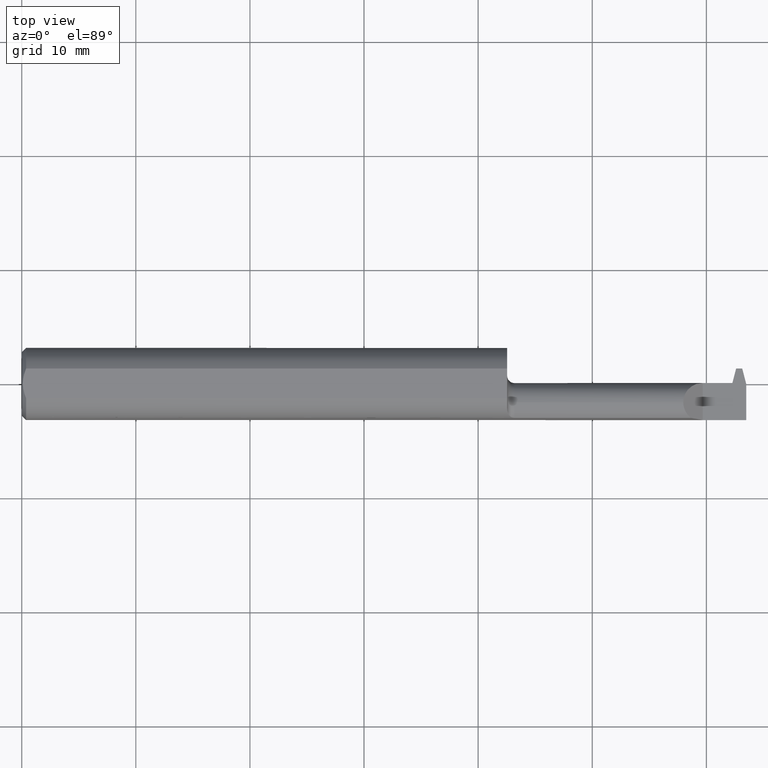
[diagram: clean part render]
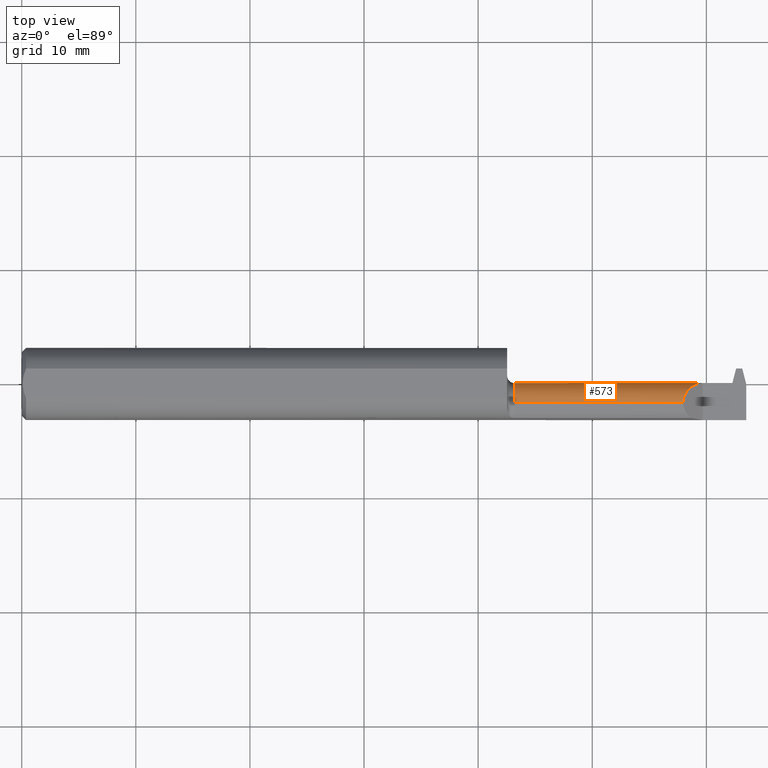
[diagram: same view with one face highlighted and labeled with its STEP entity id]
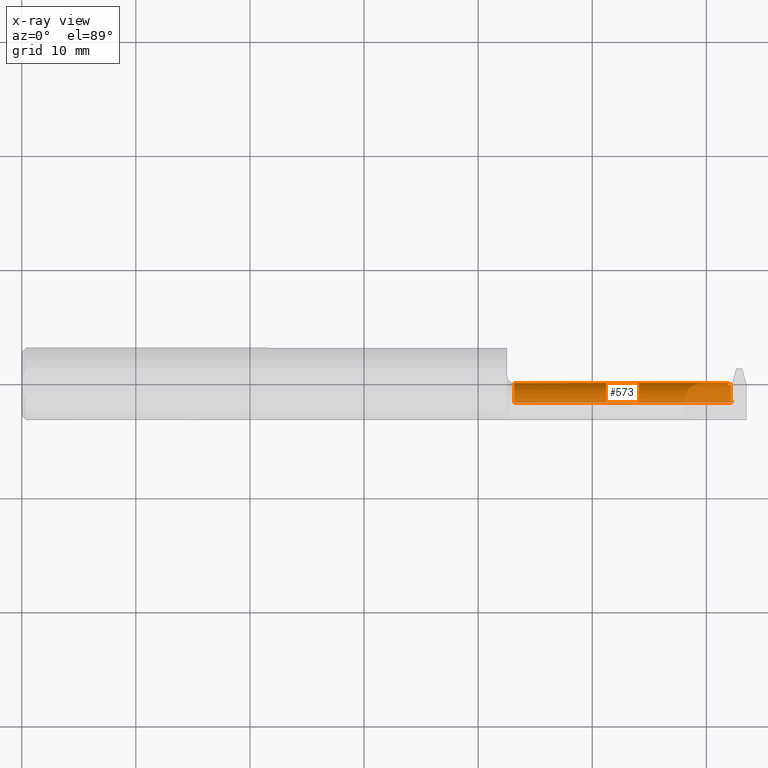
[diagram: x-ray of the same camera — body ghosted, the highlighted face saturated]
A machine part, top view. The second image highlights one B-rep face of the part: STEP entity #573.
The next image is the same camera in x-ray: the body ghosted, the highlighted face saturated — about 0% of this face is hidden behind the body in this view.
In plain terms, the highlighted cylindrical surface (edge-blend (fillet) strip) has radius 1.7145 mm, axis along (-1, -0, -0).
Its self-contained STEP definition (entity closure, byte-faithful):
#11 = EDGE_CURVE ( 'NONE', #83, #881, #441, .T. ) ;
#16 = EDGE_CURVE ( 'NONE', #265, #40, #671, .T. ) ;
#37 = CARTESIAN_POINT ( 'NONE',  ( 2.282599999999999962, -0.06435000000000003217, 0.06750000000000001832 ) ) ;
#40 = VERTEX_POINT ( 'NONE', #212 ) ;
#52 = DIRECTION ( 'NONE',  ( -1.000000000000000000, -0.000000000000000000, -0.000000000000000000 ) ) ;
#61 = CARTESIAN_POINT ( 'NONE',  ( 2.440098870360894789, 0.003149999999999981374, -0.009381965038885694066 ) ) ;
#69 = CARTESIAN_POINT ( 'NONE',  ( 1.675000000000000044, -0.05595768985601794199, -0.06697625796091639938 ) ) ;
#83 = VERTEX_POINT ( 'NONE', #835 ) ;
#88 =( BOUNDED_CURVE ( )  B_SPLINE_CURVE ( 3, ( #649, #266, #338, #37 ),
 .UNSPECIFIED., .F., .T. ) 
 B_SPLINE_CURVE_WITH_KNOTS ( ( 4, 4 ),
 ( 4.713870462408088713, 6.283185307179586232 ),
 .UNSPECIFIED. ) 
 CURVE ( )  GEOMETRIC_REPRESENTATION_ITEM ( )  RATIONAL_B_SPLINE_CURVE ( ( 1.000000000000000000, 0.8050869134249070136, 0.8050869134249070136, 1.000000000000000000 ) ) 
 REPRESENTATION_ITEM ( '' )  );
#99 = CARTESIAN_POINT ( 'NONE',  ( 1.675000000000000044, -0.06435000000000003217, 0.06750000000000001832 ) ) ;
#102 = ORIENTED_EDGE ( 'NONE', *, *, #430, .F. ) ;
#103 = CARTESIAN_POINT ( 'NONE',  ( 1.675000000000000044, 0.003149999999999980507, -3.367667473011537583E-17 ) ) ;
#122 = CARTESIAN_POINT ( 'NONE',  ( 2.436366871395940326, -0.002552249386265832611, -0.02715304806246835595 ) ) ;
#126 = VECTOR ( 'NONE', #934, 39.37007874015748143 ) ;
#128 =( BOUNDED_CURVE ( )  B_SPLINE_CURVE ( 3, ( #372, #525, #61, #830 ),
 .UNSPECIFIED., .F., .T. ) 
 B_SPLINE_CURVE_WITH_KNOTS ( ( 4, 4 ),
 ( 1.156804228221840036, 1.570796326794896780 ),
 .UNSPECIFIED. ) 
 CURVE ( )  GEOMETRIC_REPRESENTATION_ITEM ( )  RATIONAL_B_SPLINE_CURVE ( ( 1.000000000000000000, 0.9857684695413670983, 0.9857684695413670983, 1.000000000000000000 ) ) 
 REPRESENTATION_ITEM ( '' )  );
#129 = FACE_OUTER_BOUND ( 'NONE', #183, .T. ) ;
#137 = VERTEX_POINT ( 'NONE', #772 ) ;
#143 = AXIS2_PLACEMENT_3D ( 'NONE', #873, #196, #179 ) ;
#168 = VERTEX_POINT ( 'NONE', #852 ) ;
#179 = DIRECTION ( 'NONE',  ( 0.000000000000000000, 0.000000000000000000, 1.000000000000000000 ) ) ;
#183 = EDGE_LOOP ( 'NONE', ( #909, #389, #800, #102, #518, #599, #395, #360, #312, #306, #688, #686, #420 ) ) ;
#186 = EDGE_CURVE ( 'NONE', #40, #664, #826, .T. ) ;
#188 = AXIS2_PLACEMENT_3D ( 'NONE', #517, #749, #593 ) ;
#196 = DIRECTION ( 'NONE',  ( -1.000000000000000000, -0.000000000000000000, -0.000000000000000000 ) ) ;
#212 = CARTESIAN_POINT ( 'NONE',  ( 1.699999999999999956, -0.06435000000000003217, -0.06750000000000001832 ) ) ;
#221 = AXIS2_PLACEMENT_3D ( 'NONE', #255, #565, #340 ) ;
#222 = DIRECTION ( 'NONE',  ( 0.000000000000000000, 1.770642218115725568E-15, -1.000000000000000000 ) ) ;
#255 = CARTESIAN_POINT ( 'NONE',  ( 1.699999999999999956, -0.06435000000000003217, 0.000000000000000000 ) ) ;
#258 = CARTESIAN_POINT ( 'NONE',  ( 2.350000000000000089, -0.06435000000000003217, 0.000000000000000000 ) ) ;
#265 = VERTEX_POINT ( 'NONE', #631 ) ;
#266 = CARTESIAN_POINT ( 'NONE',  ( 2.310505889776659494, 0.003091416068753647349, 0.03959411022334007740 ) ) ;
#276 = DIRECTION ( 'NONE',  ( -1.000000000000000000, -0.000000000000000000, -0.000000000000000000 ) ) ;
#306 = ORIENTED_EDGE ( 'NONE', *, *, #971, .T. ) ;
#312 = ORIENTED_EDGE ( 'NONE', *, *, #401, .F. ) ;
#327 = VECTOR ( 'NONE', #52, 39.37007874015748143 ) ;
#338 = CARTESIAN_POINT ( 'NONE',  ( 2.282599999999999962, -0.02485584643600085783, 0.06749999999999999056 ) ) ;
#340 = DIRECTION ( 'NONE',  ( 0.000000000000000000, 0.000000000000000000, -1.000000000000000000 ) ) ;
#344 = AXIS2_PLACEMENT_3D ( 'NONE', #673, #513, #222 ) ;
#358 = CARTESIAN_POINT ( 'NONE',  ( 2.450000000000000178, -0.004283243744551730979, -0.03079342126085642811 ) ) ;
#360 = ORIENTED_EDGE ( 'NONE', *, *, #672, .F. ) ;
#372 = CARTESIAN_POINT ( 'NONE',  ( 2.436366871395940326, -0.002552249386265832611, -0.02715304806246835595 ) ) ;
#378 = VECTOR ( 'NONE', #819, 39.37007874015748143 ) ;
#389 = ORIENTED_EDGE ( 'NONE', *, *, #16, .T. ) ;
#395 = ORIENTED_EDGE ( 'NONE', *, *, #853, .T. ) ;
#401 = EDGE_CURVE ( 'NONE', #730, #871, #436, .T. ) ;
#420 = ORIENTED_EDGE ( 'NONE', *, *, #11, .T. ) ;
#430 = EDGE_CURVE ( 'NONE', #168, #664, #721, .T. ) ;
#435 = CARTESIAN_POINT ( 'NONE',  ( 2.446947195464070024, -0.004283243744551786490, -0.03079342126085652526 ) ) ;
#436 = LINE ( 'NONE', #741, #378 ) ;
#441 = LINE ( 'NONE', #69, #472 ) ;
#457 = EDGE_CURVE ( 'NONE', #137, #892, #778, .T. ) ;
#472 = VECTOR ( 'NONE', #511, 39.37007874015748143 ) ;
#486 = AXIS2_PLACEMENT_3D ( 'NONE', #258, #276, #803 ) ;
#491 = CIRCLE ( 'NONE', #976, 0.06750000000000001832 ) ;
#502 = LINE ( 'NONE', #103, #126 ) ;
#511 = DIRECTION ( 'NONE',  ( 1.000000000000000000, 0.000000000000000000, 0.000000000000000000 ) ) ;
#513 = DIRECTION ( 'NONE',  ( -1.000000000000000000, -0.000000000000000000, -0.000000000000000000 ) ) ;
#517 = CARTESIAN_POINT ( 'NONE',  ( 1.675000000000000044, -0.06435000000000003217, 0.000000000000000000 ) ) ;
#518 = ORIENTED_EDGE ( 'NONE', *, *, #839, .F. ) ;
#524 = CIRCLE ( 'NONE', #143, 0.06750000000000001832 ) ;
#525 = CARTESIAN_POINT ( 'NONE',  ( 2.438170679457906775, 0.001221809097012113753, -0.01856365049595230798 ) ) ;
#565 = DIRECTION ( 'NONE',  ( 1.000000000000000000, 0.000000000000000000, 0.000000000000000000 ) ) ;
#573 = ADVANCED_FACE ( 'NONE', ( #129 ), #679, .T. ) ;
#577 = EDGE_CURVE ( 'NONE', #618, #83, #823, .T. ) ;
#581 = DIRECTION ( 'NONE',  ( -1.000000000000000000, -0.000000000000000000, -0.000000000000000000 ) ) ;
#593 = DIRECTION ( 'NONE',  ( 0.000000000000000000, 0.000000000000000000, 1.000000000000000000 ) ) ;
#599 = ORIENTED_EDGE ( 'NONE', *, *, #457, .T. ) ;
#604 = VECTOR ( 'NONE', #747, 39.37007874015748143 ) ;
#608 = CARTESIAN_POINT ( 'NONE',  ( 2.442069120782206060, 0.003149999999999970966, 0.000000000000000000 ) ) ;
#618 = VERTEX_POINT ( 'NONE', #435 ) ;
#620 = CARTESIAN_POINT ( 'NONE',  ( 2.450000000000000178, -0.002552249386265836081, -0.02715304806246837330 ) ) ;
#631 = CARTESIAN_POINT ( 'NONE',  ( 2.450000000000000178, -0.06435000000000004605, -0.06750000000000001832 ) ) ;
#632 = VECTOR ( 'NONE', #915, 39.37007874015748143 ) ;
#639 = VERTEX_POINT ( 'NONE', #358 ) ;
#649 = CARTESIAN_POINT ( 'NONE',  ( 2.350000000000000089, 0.003149925925885245243, 9.999999999961100661E-05 ) ) ;
#664 = VERTEX_POINT ( 'NONE', #978 ) ;
#671 = LINE ( 'NONE', #969, #604 ) ;
#672 = EDGE_CURVE ( 'NONE', #871, #693, #128, .T. ) ;
#673 = CARTESIAN_POINT ( 'NONE',  ( 2.446947195464070024, -0.06435000000000003217, 0.000000000000000000 ) ) ;
#679 = CYLINDRICAL_SURFACE ( 'NONE', #188, 0.06750000000000001832 ) ;
#686 = ORIENTED_EDGE ( 'NONE', *, *, #577, .T. ) ;
#688 = ORIENTED_EDGE ( 'NONE', *, *, #742, .T. ) ;
#692 = CARTESIAN_POINT ( 'NONE',  ( 1.675000000000000044, -0.004283243744551786490, -0.03079342126085652526 ) ) ;
#693 = VERTEX_POINT ( 'NONE', #608 ) ;
#720 = CARTESIAN_POINT ( 'NONE',  ( 2.450000000000000178, -0.06435000000000003217, 0.000000000000000000 ) ) ;
#721 = LINE ( 'NONE', #99, #327 ) ;
#730 = VERTEX_POINT ( 'NONE', #620 ) ;
#741 = CARTESIAN_POINT ( 'NONE',  ( 1.675000000000000044, -0.002552249386265976160, -0.02715304806246865779 ) ) ;
#742 = EDGE_CURVE ( 'NONE', #639, #618, #848, .T. ) ;
#747 = DIRECTION ( 'NONE',  ( -1.000000000000000000, -0.000000000000000000, -0.000000000000000000 ) ) ;
#749 = DIRECTION ( 'NONE',  ( -1.000000000000000000, -0.000000000000000000, -0.000000000000000000 ) ) ;
#772 = CARTESIAN_POINT ( 'NONE',  ( 2.350000000000000089, 0.003149925925885245243, 9.999999999961100661E-05 ) ) ;
#778 = CIRCLE ( 'NONE', #486, 0.06750000000000001832 ) ;
#795 = CARTESIAN_POINT ( 'NONE',  ( 2.450000000000000178, -0.05595768985601804607, -0.06697625796091642714 ) ) ;
#800 = ORIENTED_EDGE ( 'NONE', *, *, #186, .T. ) ;
#803 = DIRECTION ( 'NONE',  ( 0.000000000000000000, 0.000000000000000000, 1.000000000000000000 ) ) ;
#819 = DIRECTION ( 'NONE',  ( -1.000000000000000000, -0.000000000000000000, -0.000000000000000000 ) ) ;
#823 = CIRCLE ( 'NONE', #344, 0.06750000000000001832 ) ;
#826 = CIRCLE ( 'NONE', #221, 0.06750000000000001832 ) ;
#830 = CARTESIAN_POINT ( 'NONE',  ( 2.442069120782206060, 0.003149999999999970966, 0.000000000000000000 ) ) ;
#835 = CARTESIAN_POINT ( 'NONE',  ( 2.446947195464070024, -0.05595768985601794199, -0.06697625796091639938 ) ) ;
#839 = EDGE_CURVE ( 'NONE', #137, #168, #88, .T. ) ;
#848 = LINE ( 'NONE', #692, #632 ) ;
#852 = CARTESIAN_POINT ( 'NONE',  ( 2.282599999999999962, -0.06435000000000003217, 0.06750000000000001832 ) ) ;
#853 = EDGE_CURVE ( 'NONE', #892, #693, #502, .T. ) ;
#871 = VERTEX_POINT ( 'NONE', #122 ) ;
#873 = CARTESIAN_POINT ( 'NONE',  ( 2.450000000000000178, -0.06435000000000003217, 0.000000000000000000 ) ) ;
#878 = DIRECTION ( 'NONE',  ( 0.000000000000000000, 0.000000000000000000, 1.000000000000000000 ) ) ;
#881 = VERTEX_POINT ( 'NONE', #795 ) ;
#892 = VERTEX_POINT ( 'NONE', #949 ) ;
#909 = ORIENTED_EDGE ( 'NONE', *, *, #924, .T. ) ;
#915 = DIRECTION ( 'NONE',  ( -1.000000000000000000, -0.000000000000000000, -0.000000000000000000 ) ) ;
#924 = EDGE_CURVE ( 'NONE', #881, #265, #524, .T. ) ;
#934 = DIRECTION ( 'NONE',  ( 1.000000000000000000, 0.000000000000000000, 0.000000000000000000 ) ) ;
#949 = CARTESIAN_POINT ( 'NONE',  ( 2.350000000000000089, 0.003149999999999971833, -3.367667473011536351E-17 ) ) ;
#969 = CARTESIAN_POINT ( 'NONE',  ( 1.675000000000000044, -0.06435000000000003217, -0.06750000000000001832 ) ) ;
#971 = EDGE_CURVE ( 'NONE', #730, #639, #491, .T. ) ;
#976 = AXIS2_PLACEMENT_3D ( 'NONE', #720, #581, #878 ) ;
#978 = CARTESIAN_POINT ( 'NONE',  ( 1.699999999999999956, -0.06435000000000003217, 0.06750000000000001832 ) ) ;